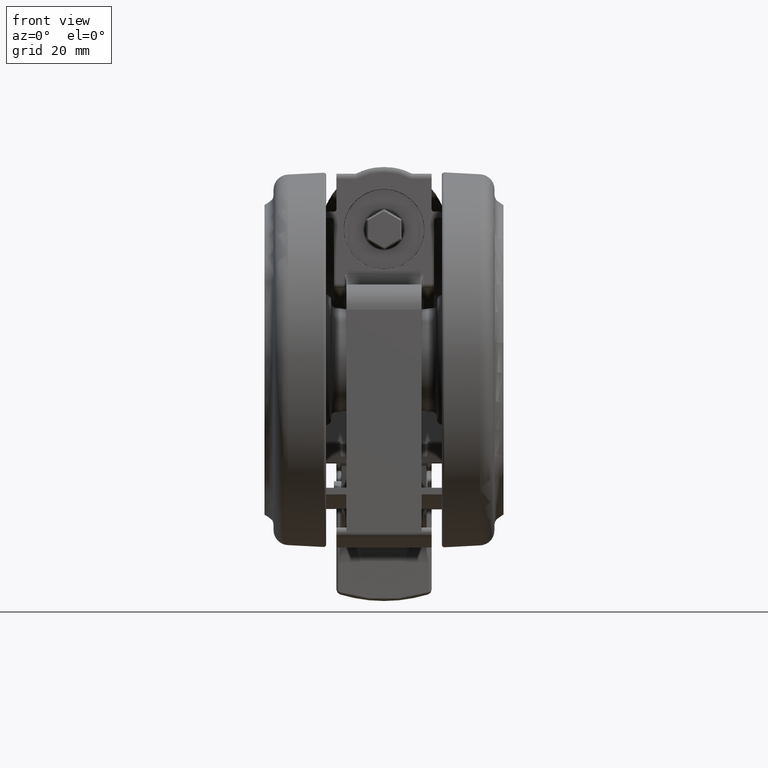
[diagram: clean part render]
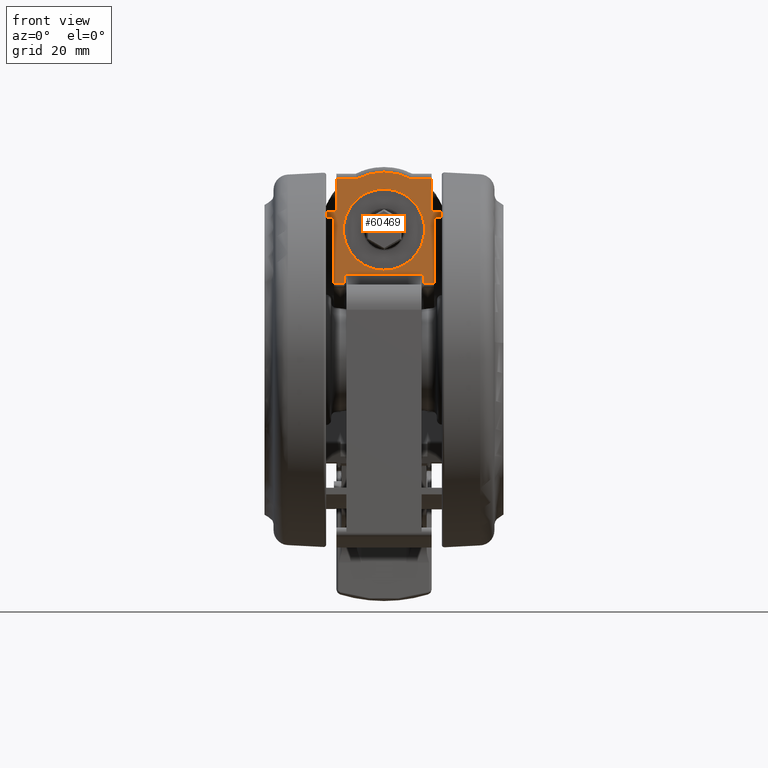
[diagram: same view with one face highlighted and labeled with its STEP entity id]
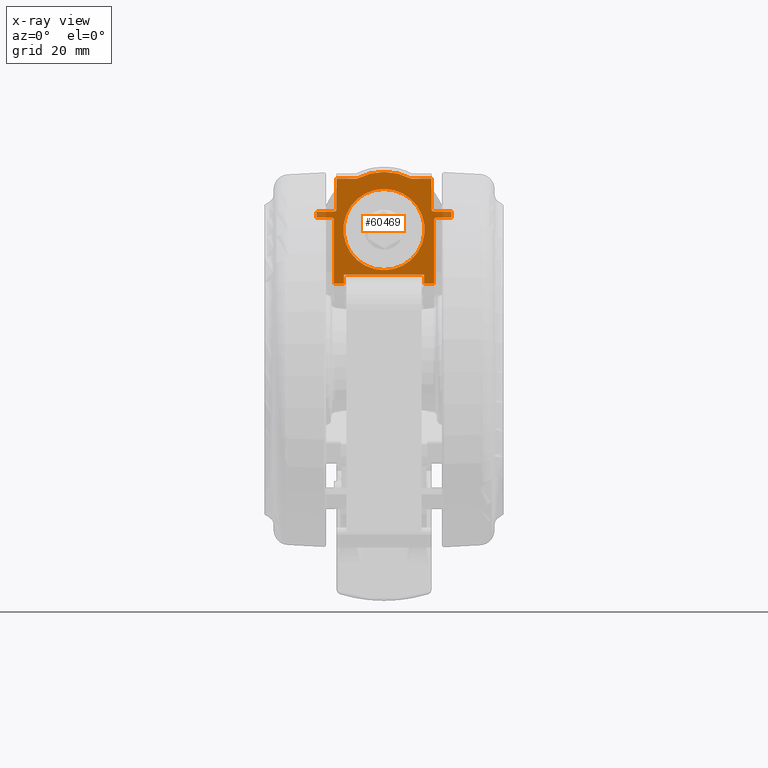
[diagram: x-ray of the same camera — body ghosted, the highlighted face saturated]
A machine part, front view. The second image highlights one B-rep face of the part: STEP entity #60469.
The next image is the same camera in x-ray: the body ghosted, the highlighted face saturated — about 2% of this face is hidden behind the body in this view.
In plain terms, the highlighted planar face has unit normal (0, -1, 0).
Its self-contained STEP definition (entity closure, byte-faithful):
#280 = DIRECTION ( 'NONE',  ( -0.1091445485807130400, 0.9940258887549723300, 0.0000000000000000000 ) ) ;
#449 = DIRECTION ( 'NONE',  ( 0.1091445485807130100, -0.9940258887549721100, 0.0000000000000000000 ) ) ;
#570 = ORIENTED_EDGE ( 'NONE', *, *, #36210, .T. ) ;
#622 = LINE ( 'NONE', #55205, #4194 ) ;
#747 = CARTESIAN_POINT ( 'NONE',  ( -2.317250034057589200, -15.54446371798203300, -33.84999999999990900 ) ) ;
#908 = CARTESIAN_POINT ( 'NONE',  ( -0.8797388840196467300, -28.63648999957823100, -34.34999999997899100 ) ) ;
#1197 = CARTESIAN_POINT ( 'NONE',  ( -0.7499411336743749800, -29.81861339303330300, -10.44500463404722400 ) ) ;
#1531 = LINE ( 'NONE', #62427, #73681 ) ;
#1791 = B_SPLINE_CURVE_WITH_KNOTS ( 'NONE', 3,
 ( #11740, #40200, #5816, #51672, #17419, #57368 ),
 .UNSPECIFIED., .F., .F.,
 ( 4, 2, 4 ),
 ( 0.0000000000000000000, 0.0003925160640618587200, 0.0007850321281237174300 ),
 .UNSPECIFIED. ) ;
#1936 = CARTESIAN_POINT ( 'NONE',  ( -0.8797388840196468400, -28.63648999957822400, -10.49691585668118600 ) ) ;
#1958 = CARTESIAN_POINT ( 'NONE',  ( -0.7475227590264601500, -29.84063856094133300, -37.15000000001510500 ) ) ;
#2286 = ORIENTED_EDGE ( 'NONE', *, *, #62149, .F. ) ;
#2609 = CARTESIAN_POINT ( 'NONE',  ( -0.7695516967635204200, -29.64001164281160100, -37.34999999999990200 ) ) ;
#3920 = VECTOR ( 'NONE', #48381, 1000.000000000000100 ) ;
#3929 = CARTESIAN_POINT ( 'NONE',  ( -0.6924621032087025000, -30.34209940389130400, -14.34999999999990500 ) ) ;
#4104 = ORIENTED_EDGE ( 'NONE', *, *, #11115, .T. ) ;
#4156 = EDGE_CURVE ( 'NONE', #68184, #42937, #29688, .T. ) ;
#4194 = VECTOR ( 'NONE', #20957, 1000.000000000000100 ) ;
#5072 = PLANE ( 'NONE',  #66597 ) ;
#5648 = AXIS2_PLACEMENT_3D ( 'NONE', #11135, #51059, #16813 ) ;
#5816 = CARTESIAN_POINT ( 'NONE',  ( -0.9061936100843439600, -28.39555554219868600, -13.79656109499671900 ) ) ;
#5817 = ORIENTED_EDGE ( 'NONE', *, *, #22575, .T. ) ;
#5931 = DIRECTION ( 'NONE',  ( 0.0000000000000000000, 0.0000000000000000000, 1.000000000000000000 ) ) ;
#5959 = VERTEX_POINT ( 'NONE', #21475 ) ;
#6161 = ORIENTED_EDGE ( 'NONE', *, *, #16630, .T. ) ;
#6313 = DIRECTION ( 'NONE',  ( -0.0000000000000000000, 0.0000000000000000000, 1.000000000000000000 ) ) ;
#6364 = B_SPLINE_CURVE_WITH_KNOTS ( 'NONE', 3,
 ( #1958, #36038, #7661, #47536, #13334, #53273 ),
 .UNSPECIFIED., .F., .F.,
 ( 4, 2, 4 ),
 ( 0.0000000000000000000, 0.0001569330247998024500, 0.0003138660495996049100 ),
 .UNSPECIFIED. ) ;
#6622 = CARTESIAN_POINT ( 'NONE',  ( -0.9203780501939548000, -28.26637180494568800, -33.84999999998024800 ) ) ;
#6644 = FACE_BOUND ( 'NONE', #58990, .T. ) ;
#6829 = LINE ( 'NONE', #19219, #63811 ) ;
#6903 = CARTESIAN_POINT ( 'NONE',  ( -0.7475227590264601500, -29.84063856094133300, -10.54999999998470600 ) ) ;
#6944 = CARTESIAN_POINT ( 'NONE',  ( -0.8797388840196467300, -28.63648999957823100, -500023.8499999999800 ) ) ;
#7458 = EDGE_CURVE ( 'NONE', #56488, #61046, #8826, .T. ) ;
#7661 = CARTESIAN_POINT ( 'NONE',  ( -0.7499358986295142600, -29.81866107081647100, -37.25489541676648000 ) ) ;
#7889 = B_SPLINE_CURVE_WITH_KNOTS ( 'NONE', 3,
 ( #33854, #28065, #11205, #51131, #16884, #56822 ),
 .UNSPECIFIED., .F., .F.,
 ( 4, 2, 4 ),
 ( 0.0000000000000000000, 0.0001569839258978345300, 0.0003139678517956690600 ),
 .UNSPECIFIED. ) ;
#8151 = CARTESIAN_POINT ( 'NONE',  ( -0.02988281982661995800, -36.37649113118360600, -33.34999999999990900 ) ) ;
#8202 = CARTESIAN_POINT ( 'NONE',  ( -3.976103555019894700, -0.4365781943228521100, -33.84999999999990900 ) ) ;
#8491 = CARTESIAN_POINT ( 'NONE',  ( -3.976103555019894700, -0.4365781943228521100, -13.84999999999990500 ) ) ;
#8826 = CIRCLE ( 'NONE', #14606, 8.100000000000001400 ) ;
#9152 = EDGE_CURVE ( 'NONE', #39172, #19745, #1791, .T. ) ;
#9386 = CARTESIAN_POINT ( 'NONE',  ( -0.02988281982661995800, -36.37649113118360600, -18.47646005874848600 ) ) ;
#9921 = EDGE_CURVE ( 'NONE', #45532, #56229, #54877, .T. ) ;
#10203 = VECTOR ( 'NONE', #5931, 1000.000000000000000 ) ;
#10683 = VERTEX_POINT ( 'NONE', #13268 ) ;
#10761 = DIRECTION ( 'NONE',  ( -0.1091445485807130100, 0.9940258887549721100, 0.0000000000000000000 ) ) ;
#11115 = EDGE_CURVE ( 'NONE', #33305, #52632, #35784, .T. ) ;
#11135 = CARTESIAN_POINT ( 'NONE',  ( -1.138345291921355900, -26.28125130195212800, -23.84999999999990500 ) ) ;
#11205 = CARTESIAN_POINT ( 'NONE',  ( -0.8691603829267878800, -28.73283291443072300, -37.32861079241305200 ) ) ;
#11349 = LINE ( 'NONE', #18230, #53295 ) ;
#11740 = CARTESIAN_POINT ( 'NONE',  ( -0.9348606753327649600, -28.13447236963431300, -13.84999999999990500 ) ) ;
#11838 = EDGE_CURVE ( 'NONE', #22046, #68184, #51010, .T. ) ;
#11891 = CARTESIAN_POINT ( 'NONE',  ( -0.2542744484175804000, -34.33286100086740300, -23.84999999999990500 ) ) ;
#11982 = CARTESIAN_POINT ( 'NONE',  ( -2.317250034057589200, -15.54446371798203300, -23.84999999999990500 ) ) ;
#12163 = ORIENTED_EDGE ( 'NONE', *, *, #9152, .T. ) ;
#12408 = CARTESIAN_POINT ( 'NONE',  ( -2.120646229147773000, -17.33501830315738300, -15.84999999999990500 ) ) ;
#12628 = DIRECTION ( 'NONE',  ( 0.0000000000000000000, 0.0000000000000000000, 1.000000000000000000 ) ) ;
#13268 = CARTESIAN_POINT ( 'NONE',  ( -0.8797388840196467300, -28.63648999957823100, -10.54999999998470600 ) ) ;
#13279 = EDGE_CURVE ( 'NONE', #52632, #15676, #73040, .T. ) ;
#13309 = CARTESIAN_POINT ( 'NONE',  ( -0.8773218816118914000, -28.65850266991068900, -10.44507675061093500 ) ) ;
#13334 = CARTESIAN_POINT ( 'NONE',  ( -0.7637611967200461600, -29.69274819289036300, -37.35000000001554100 ) ) ;
#13763 = ORIENTED_EDGE ( 'NONE', *, *, #58813, .T. ) ;
#14187 = CARTESIAN_POINT ( 'NONE',  ( -0.7475227590264601500, -29.84063856094134000, -13.98265121509559000 ) ) ;
#14606 = AXIS2_PLACEMENT_3D ( 'NONE', #27941, #67878, #33727 ) ;
#14973 = CARTESIAN_POINT ( 'NONE',  ( -0.9348606753327649600, -28.13447236963431300, -13.84999999999990500 ) ) ;
#15071 = ORIENTED_EDGE ( 'NONE', *, *, #63628, .T. ) ;
#15131 = EDGE_CURVE ( 'NONE', #15802, #56320, #1531, .T. ) ;
#15170 = ORIENTED_EDGE ( 'NONE', *, *, #20865, .T. ) ;
#15359 = DIRECTION ( 'NONE',  ( 0.0000000000000000000, 0.0000000000000000000, 1.000000000000000000 ) ) ;
#15676 = VERTEX_POINT ( 'NONE', #62839 ) ;
#15802 = VERTEX_POINT ( 'NONE', #2609 ) ;
#16388 = CARTESIAN_POINT ( 'NONE',  ( -0.7069388915144606500, -30.21025312710445100, -33.34999999999990900 ) ) ;
#16595 = CARTESIAN_POINT ( 'NONE',  ( -0.8797388840196467300, -28.63648999957823100, -34.34999999997899100 ) ) ;
#16630 = EDGE_CURVE ( 'NONE', #15676, #48558, #55700, .T. ) ;
#16813 = DIRECTION ( 'NONE',  ( -0.1091445485807129900, 0.9940258887549720000, 0.0000000000000000000 ) ) ;
#16884 = CARTESIAN_POINT ( 'NONE',  ( -0.8797388840197092300, -28.63648999957765900, -37.20309339131838300 ) ) ;
#17419 = CARTESIAN_POINT ( 'NONE',  ( -0.8797388840196468400, -28.63648999957823400, -13.48275286714708100 ) ) ;
#18230 = CARTESIAN_POINT ( 'NONE',  ( -0.7475227590264601500, -29.84063856094133300, 499976.1500000000200 ) ) ;
#18372 = VECTOR ( 'NONE', #34897, 1000.000000000000000 ) ;
#18385 = LINE ( 'NONE', #72125, #58519 ) ;
#18990 = LINE ( 'NONE', #8491, #3920 ) ;
#19030 = CARTESIAN_POINT ( 'NONE',  ( -0.8634878508237166000, -28.78449508023350500, -10.34999999998421000 ) ) ;
#19219 = CARTESIAN_POINT ( 'NONE',  ( -3.976103555019894700, -0.4365781943228521100, -14.34999999999990500 ) ) ;
#19702 = VERTEX_POINT ( 'NONE', #61316 ) ;
#19745 = VERTEX_POINT ( 'NONE', #67529 ) ;
#20102 = CARTESIAN_POINT ( 'NONE',  ( -0.7211524360981862400, -30.08080432301004200, -14.29620917923133300 ) ) ;
#20544 = VECTOR ( 'NONE', #66414, 1000.000000000000000 ) ;
#20731 = DIRECTION ( 'NONE',  ( -0.1091445485807130100, 0.9940258887549721100, 0.0000000000000000000 ) ) ;
#20865 = EDGE_CURVE ( 'NONE', #23448, #35252, #70515, .T. ) ;
#20878 = DIRECTION ( 'NONE',  ( -0.0000000000000000000, -0.0000000000000000000, -1.000000000000000000 ) ) ;
#20957 = DIRECTION ( 'NONE',  ( -0.1091445485807130100, 0.9940258887549721100, -0.0000000000000000000 ) ) ;
#21108 = ORIENTED_EDGE ( 'NONE', *, *, #4156, .T. ) ;
#21300 = DIRECTION ( 'NONE',  ( -0.0000000000000000000, 0.0000000000000000000, 1.000000000000000000 ) ) ;
#21475 = CARTESIAN_POINT ( 'NONE',  ( -2.317250034057589200, -15.54446371798203300, -15.84999999999990500 ) ) ;
#22046 = VERTEX_POINT ( 'NONE', #36317 ) ;
#22575 = EDGE_CURVE ( 'NONE', #50613, #22046, #6829, .T. ) ;
#23448 = VERTEX_POINT ( 'NONE', #16595 ) ;
#23745 = CARTESIAN_POINT ( 'NONE',  ( -0.7695516967635204200, -29.64001164281160100, -10.34999999999990500 ) ) ;
#24940 = DIRECTION ( 'NONE',  ( 0.1091445485807130100, -0.9940258887549721100, 0.0000000000000000000 ) ) ;
#25463 = ORIENTED_EDGE ( 'NONE', *, *, #44858, .T. ) ;
#25863 = CARTESIAN_POINT ( 'NONE',  ( -0.6924621032087025000, -30.34209940389130400, -14.34999999999990500 ) ) ;
#27559 = CARTESIAN_POINT ( 'NONE',  ( -0.6924621032087025000, -30.34209940389130400, -33.34999999999990900 ) ) ;
#27629 = CARTESIAN_POINT ( 'NONE',  ( -1.138345291921355900, -26.28125130195212800, -23.84999999999990500 ) ) ;
#27805 = CARTESIAN_POINT ( 'NONE',  ( -0.7211100110786254900, -30.08119070573207000, -33.40353851437991800 ) ) ;
#27941 = CARTESIAN_POINT ( 'NONE',  ( -1.138345291921355900, -26.28125130195212800, -23.84999999999990500 ) ) ;
#28065 = CARTESIAN_POINT ( 'NONE',  ( -0.8634888181087978500, -28.78448627075629000, -37.34999999999988800 ) ) ;
#28121 = LINE ( 'NONE', #55126, #58505 ) ;
#29688 = CIRCLE ( 'NONE', #50266, 11.50000000000000000 ) ;
#30516 = CARTESIAN_POINT ( 'NONE',  ( -2.317250034057589200, -15.54446371798203300, -13.84999999999990500 ) ) ;
#32133 = ORIENTED_EDGE ( 'NONE', *, *, #55892, .F. ) ;
#33305 = VERTEX_POINT ( 'NONE', #747 ) ;
#33378 = ORIENTED_EDGE ( 'NONE', *, *, #40766, .T. ) ;
#33533 = LINE ( 'NONE', #68771, #18372 ) ;
#33542 = CARTESIAN_POINT ( 'NONE',  ( -0.7475227590264601500, -29.84063856094133300, -13.85000000000899700 ) ) ;
#33586 = CARTESIAN_POINT ( 'NONE',  ( -0.7475227590264601500, -29.84063856094132900, -33.71732776309662000 ) ) ;
#33604 = EDGE_CURVE ( 'NONE', #42937, #73361, #28121, .T. ) ;
#33724 = DIRECTION ( 'NONE',  ( -0.1091445485807130100, 0.9940258887549721100, 0.0000000000000000000 ) ) ;
#33727 = DIRECTION ( 'NONE',  ( -0.1091445485807129900, 0.9940258887549720000, 0.0000000000000000000 ) ) ;
#33854 = CARTESIAN_POINT ( 'NONE',  ( -0.8576955798834359200, -28.83724775862369700, -37.34999999999990200 ) ) ;
#34355 = DIRECTION ( 'NONE',  ( 0.9940258887549722200, 0.1091445485807130300, 0.0000000000000000000 ) ) ;
#34383 = EDGE_CURVE ( 'NONE', #73361, #19702, #18385, .T. ) ;
#34709 = VERTEX_POINT ( 'NONE', #69323 ) ;
#34710 = CARTESIAN_POINT ( 'NONE',  ( -0.7695516967635204200, -29.64001164281160100, -10.34999999999990500 ) ) ;
#34897 = DIRECTION ( 'NONE',  ( 0.0000000000000000000, -0.0000000000000000000, -1.000000000000000000 ) ) ;
#35252 = VERTEX_POINT ( 'NONE', #59012 ) ;
#35278 = CARTESIAN_POINT ( 'NONE',  ( -0.7580907863250059300, -29.74439103539446800, -10.37140367543216100 ) ) ;
#35452 = DIRECTION ( 'NONE',  ( 0.0000000000000000000, -0.0000000000000000000, -1.000000000000000000 ) ) ;
#35784 = LINE ( 'NONE', #11982, #60704 ) ;
#36038 = CARTESIAN_POINT ( 'NONE',  ( -0.7475227590264601500, -29.84063856094133300, -37.20306697652921500 ) ) ;
#36210 = EDGE_CURVE ( 'NONE', #45532, #34709, #73744, .T. ) ;
#36317 = CARTESIAN_POINT ( 'NONE',  ( -0.02988281982661995800, -36.37649113118360600, -14.34999999999990500 ) ) ;
#36589 = DIRECTION ( 'NONE',  ( -0.1091445485807130100, 0.9940258887549721100, 0.0000000000000000000 ) ) ;
#36656 = ORIENTED_EDGE ( 'NONE', *, *, #11838, .T. ) ;
#38101 = CARTESIAN_POINT ( 'NONE',  ( -2.317250034057589200, -15.54446371798203300, -31.84999999999990500 ) ) ;
#39172 = VERTEX_POINT ( 'NONE', #14973 ) ;
#39727 = VECTOR ( 'NONE', #33724, 1000.000000000000100 ) ;
#39819 = ORIENTED_EDGE ( 'NONE', *, *, #57933, .T. ) ;
#39867 = LINE ( 'NONE', #49840, #51470 ) ;
#40200 = CARTESIAN_POINT ( 'NONE',  ( -0.9203756064838988200, -28.26639406085395100, -13.84999999999990400 ) ) ;
#40518 = CARTESIAN_POINT ( 'NONE',  ( -0.8857833122117388900, -28.58144081770162600, -34.08765366695188700 ) ) ;
#40744 = CARTESIAN_POINT ( 'NONE',  ( -0.9061500125040243800, -28.39595260393092600, -33.90370064642542000 ) ) ;
#40766 = EDGE_CURVE ( 'NONE', #19702, #41881, #47651, .T. ) ;
#41035 = CARTESIAN_POINT ( 'NONE',  ( -0.7475227590263983100, -29.84063856094190500, -10.49692441354207900 ) ) ;
#41530 = CARTESIAN_POINT ( 'NONE',  ( -0.02988281982665725500, -36.37649113118325800, -18.45486851520146500 ) ) ;
#41782 = CARTESIAN_POINT ( 'NONE',  ( -0.8797388840196467300, -28.63648999957823100, -10.54999999998470600 ) ) ;
#41881 = VERTEX_POINT ( 'NONE', #51421 ) ;
#42521 = LINE ( 'NONE', #8202, #70987 ) ;
#42772 = VECTOR ( 'NONE', #449, 1000.000000000000100 ) ;
#42937 = VERTEX_POINT ( 'NONE', #71429 ) ;
#44085 = ORIENTED_EDGE ( 'NONE', *, *, #59217, .T. ) ;
#44488 = B_SPLINE_CURVE_WITH_KNOTS ( 'NONE', 3,
 ( #41782, #1936, #13309, #53256, #19030, #58918 ),
 .UNSPECIFIED., .F., .F.,
 ( 4, 2, 4 ),
 ( 0.0000000000000000000, 0.0001569829722061791200, 0.0003139659444123582500 ),
 .UNSPECIFIED. ) ;
#44858 = EDGE_CURVE ( 'NONE', #5959, #46543, #39867, .T. ) ;
#44934 = DIRECTION ( 'NONE',  ( 0.9940258887549722200, 0.1091445485807130300, 0.0000000000000000000 ) ) ;
#45532 = VERTEX_POINT ( 'NONE', #34710 ) ;
#46519 = CARTESIAN_POINT ( 'NONE',  ( -0.9348606753327649600, -28.13447236963431300, -33.84999999999990900 ) ) ;
#46543 = VERTEX_POINT ( 'NONE', #30516 ) ;
#47536 = CARTESIAN_POINT ( 'NONE',  ( -0.7580736918692524400, -29.74454672188356200, -37.32849446779824400 ) ) ;
#47611 = ORIENTED_EDGE ( 'NONE', *, *, #58575, .T. ) ;
#47651 = B_SPLINE_CURVE_WITH_KNOTS ( 'NONE', 3,
 ( #27559, #16388, #27805, #67731, #33586, #73476 ),
 .UNSPECIFIED., .F., .F.,
 ( 4, 2, 4 ),
 ( 0.0000000000000000000, 0.0003922863529919725000, 0.0007845727059839450100 ),
 .UNSPECIFIED. ) ;
#47681 = ORIENTED_EDGE ( 'NONE', *, *, #9921, .F. ) ;
#48238 = EDGE_CURVE ( 'NONE', #39172, #46543, #18990, .T. ) ;
#48381 = DIRECTION ( 'NONE',  ( -0.1091445485807130100, 0.9940258887549721100, 0.0000000000000000000 ) ) ;
#48558 = VERTEX_POINT ( 'NONE', #12408 ) ;
#49455 = CARTESIAN_POINT ( 'NONE',  ( -0.8797388840196467300, -28.63648999957823100, -37.15000000001510500 ) ) ;
#49840 = CARTESIAN_POINT ( 'NONE',  ( -2.317250034057589200, -15.54446371798203300, -14.34999999999990500 ) ) ;
#49942 = B_SPLINE_CURVE_WITH_KNOTS ( 'NONE', 3,
 ( #59797, #14187, #54357, #20102, #60039, #25863 ),
 .UNSPECIFIED., .F., .F.,
 ( 4, 2, 4 ),
 ( 0.0000000000000000000, 0.0003922842060889796600, 0.0007845684121779593300 ),
 .UNSPECIFIED. ) ;
#50266 = AXIS2_PLACEMENT_3D ( 'NONE', #68474, #34355, #280 ) ;
#50613 = VERTEX_POINT ( 'NONE', #3929 ) ;
#51010 = LINE ( 'NONE', #9386, #20544 ) ;
#51059 = DIRECTION ( 'NONE',  ( 0.9940258887549722200, 0.1091445485807130300, 0.0000000000000000000 ) ) ;
#51131 = CARTESIAN_POINT ( 'NONE',  ( -0.8773168648711443500, -28.65854835950530300, -37.25502107574581600 ) ) ;
#51318 = CARTESIAN_POINT ( 'NONE',  ( -0.7475227590264601500, -29.84063856094133300, -37.15000000001510500 ) ) ;
#51421 = CARTESIAN_POINT ( 'NONE',  ( -0.7475227590264601500, -29.84063856094133300, -33.84999999999082100 ) ) ;
#51470 = VECTOR ( 'NONE', #21300, 1000.000000000000000 ) ;
#51672 = CARTESIAN_POINT ( 'NONE',  ( -0.8857956741901543700, -28.58132823189921000, -13.61258965920853800 ) ) ;
#51766 = EDGE_LOOP ( 'NONE', ( #59408, #15170, #13763, #4104, #65216, #6161, #39819, #25463, #52813, #12163, #15071, #67436, #47681, #570, #32133, #44085, #5817, #36656, #21108, #70843, #57570, #33378, #72721, #58704, #55830, #47611 ) ) ;
#51926 = CIRCLE ( 'NONE', #5648, 8.100000000000001400 ) ;
#52118 = VERTEX_POINT ( 'NONE', #49455 ) ;
#52632 = VERTEX_POINT ( 'NONE', #38101 ) ;
#52813 = ORIENTED_EDGE ( 'NONE', *, *, #48238, .F. ) ;
#53256 = CARTESIAN_POINT ( 'NONE',  ( -0.8691776761038956200, -28.73267541810160400, -10.37149281034984200 ) ) ;
#53273 = CARTESIAN_POINT ( 'NONE',  ( -0.7695516967635204200, -29.64001164281160100, -37.34999999999990200 ) ) ;
#53295 = VECTOR ( 'NONE', #35452, 1000.000000000000000 ) ;
#53491 = CARTESIAN_POINT ( 'NONE',  ( -0.8576955798834359200, -28.83724775862369700, -10.34999999999990500 ) ) ;
#53879 = EDGE_CURVE ( 'NONE', #23448, #52118, #33533, .T. ) ;
#54357 = CARTESIAN_POINT ( 'NONE',  ( -0.7414915699643415100, -29.89556716842270800, -14.11220555239927100 ) ) ;
#54877 = LINE ( 'NONE', #67874, #39727 ) ;
#55126 = CARTESIAN_POINT ( 'NONE',  ( -0.02988281982661995800, -36.37649113118360600, -33.34999999999990900 ) ) ;
#55205 = CARTESIAN_POINT ( 'NONE',  ( -1.138345291921355900, -26.28125130195212800, -15.84999999999990500 ) ) ;
#55700 = LINE ( 'NONE', #57000, #10203 ) ;
#55830 = ORIENTED_EDGE ( 'NONE', *, *, #15131, .T. ) ;
#55892 = EDGE_CURVE ( 'NONE', #69449, #34709, #71245, .T. ) ;
#56146 = VECTOR ( 'NONE', #15359, 1000.000000000000000 ) ;
#56229 = VERTEX_POINT ( 'NONE', #53491 ) ;
#56320 = VERTEX_POINT ( 'NONE', #71338 ) ;
#56488 = VERTEX_POINT ( 'NONE', #62600 ) ;
#56822 = CARTESIAN_POINT ( 'NONE',  ( -0.8797388840196467300, -28.63648999957823100, -37.15000000001510500 ) ) ;
#57000 = CARTESIAN_POINT ( 'NONE',  ( -2.120646229147773000, -17.33501830315738300, -23.84999999999990500 ) ) ;
#57368 = CARTESIAN_POINT ( 'NONE',  ( -0.8797388840196467300, -28.63648999957823100, -13.35000000002082600 ) ) ;
#57570 = ORIENTED_EDGE ( 'NONE', *, *, #34383, .T. ) ;
#57933 = EDGE_CURVE ( 'NONE', #48558, #5959, #622, .T. ) ;
#57970 = CARTESIAN_POINT ( 'NONE',  ( -0.7637602999368404700, -29.69275636027695200, -10.34999999999990000 ) ) ;
#58505 = VECTOR ( 'NONE', #20878, 1000.000000000000000 ) ;
#58519 = VECTOR ( 'NONE', #20731, 1000.000000000000100 ) ;
#58575 = EDGE_CURVE ( 'NONE', #56320, #52118, #7889, .T. ) ;
#58704 = ORIENTED_EDGE ( 'NONE', *, *, #73324, .T. ) ;
#58813 = EDGE_CURVE ( 'NONE', #35252, #33305, #42521, .T. ) ;
#58918 = CARTESIAN_POINT ( 'NONE',  ( -0.8576955798834359200, -28.83724775862369700, -10.34999999999990500 ) ) ;
#58990 = EDGE_LOOP ( 'NONE', ( #2286, #67982 ) ) ;
#59012 = CARTESIAN_POINT ( 'NONE',  ( -0.9348606753327649600, -28.13447236963431300, -33.84999999999990900 ) ) ;
#59217 = EDGE_CURVE ( 'NONE', #69449, #50613, #49942, .T. ) ;
#59273 = LINE ( 'NONE', #6944, #72651 ) ;
#59408 = ORIENTED_EDGE ( 'NONE', *, *, #53879, .F. ) ;
#59797 = CARTESIAN_POINT ( 'NONE',  ( -0.7475227590264601500, -29.84063856094133300, -13.85000000000899700 ) ) ;
#60039 = CARTESIAN_POINT ( 'NONE',  ( -0.7069366726468853100, -30.21027333527647600, -14.35000000000845200 ) ) ;
#60469 = ADVANCED_FACE ( 'NONE', ( #67213, #6644 ), #5072, .T. ) ;
#60704 = VECTOR ( 'NONE', #6313, 1000.000000000000000 ) ;
#61046 = VERTEX_POINT ( 'NONE', #11891 ) ;
#61316 = CARTESIAN_POINT ( 'NONE',  ( -0.6924621032087025000, -30.34209940389130400, -33.34999999999990900 ) ) ;
#62149 = EDGE_CURVE ( 'NONE', #61046, #56488, #51926, .T. ) ;
#62324 = EDGE_CURVE ( 'NONE', #10683, #56229, #44488, .T. ) ;
#62427 = CARTESIAN_POINT ( 'NONE',  ( -0.7475227590264601500, -29.84063856094133300, -37.34999999999990200 ) ) ;
#62600 = CARTESIAN_POINT ( 'NONE',  ( -2.022416135425131300, -18.22964160303685300, -23.84999999999990500 ) ) ;
#62839 = CARTESIAN_POINT ( 'NONE',  ( -2.120646229147773000, -17.33501830315738300, -31.84999999999990500 ) ) ;
#63628 = EDGE_CURVE ( 'NONE', #19745, #10683, #59273, .T. ) ;
#63811 = VECTOR ( 'NONE', #24940, 1000.000000000000100 ) ;
#65193 = VERTEX_POINT ( 'NONE', #51318 ) ;
#65216 = ORIENTED_EDGE ( 'NONE', *, *, #13279, .T. ) ;
#66414 = DIRECTION ( 'NONE',  ( -0.0000000000000000000, -0.0000000000000000000, -1.000000000000000000 ) ) ;
#66597 = AXIS2_PLACEMENT_3D ( 'NONE', #27629, #44934, #10761 ) ;
#67213 = FACE_OUTER_BOUND ( 'NONE', #51766, .T. ) ;
#67436 = ORIENTED_EDGE ( 'NONE', *, *, #62324, .T. ) ;
#67529 = CARTESIAN_POINT ( 'NONE',  ( -0.8797388840196467300, -28.63648999957823100, -13.35000000002082600 ) ) ;
#67731 = CARTESIAN_POINT ( 'NONE',  ( -0.7414783294968715400, -29.89568775499908400, -33.58754351971924700 ) ) ;
#67874 = CARTESIAN_POINT ( 'NONE',  ( -0.7475227590264601500, -29.84063856094133300, -10.34999999999990500 ) ) ;
#67878 = DIRECTION ( 'NONE',  ( 0.9940258887549722200, 0.1091445485807130300, 0.0000000000000000000 ) ) ;
#67982 = ORIENTED_EDGE ( 'NONE', *, *, #7458, .F. ) ;
#68147 = DIRECTION ( 'NONE',  ( -0.1091445485807130100, 0.9940258887549721100, 0.0000000000000000000 ) ) ;
#68184 = VERTEX_POINT ( 'NONE', #41530 ) ;
#68474 = CARTESIAN_POINT ( 'NONE',  ( -1.138345291921355900, -26.28125130195212800, -23.84999999999990500 ) ) ;
#68771 = CARTESIAN_POINT ( 'NONE',  ( -0.8797388840196467300, -28.63648999957823100, 499976.1500000000200 ) ) ;
#68903 = CARTESIAN_POINT ( 'NONE',  ( -1.138345291921355900, -26.28125130195212800, -31.84999999999990500 ) ) ;
#69103 = CARTESIAN_POINT ( 'NONE',  ( -0.8797388840196467300, -28.63648999957822700, -34.21727083429262000 ) ) ;
#69323 = CARTESIAN_POINT ( 'NONE',  ( -0.7475227590264601500, -29.84063856094133300, -10.54999999998470600 ) ) ;
#69449 = VERTEX_POINT ( 'NONE', #33542 ) ;
#69919 = EDGE_CURVE ( 'NONE', #41881, #65193, #11349, .T. ) ;
#70515 = B_SPLINE_CURVE_WITH_KNOTS ( 'NONE', 3,
 ( #908, #69103, #40518, #40744, #6622, #46519 ),
 .UNSPECIFIED., .F., .F.,
 ( 4, 2, 4 ),
 ( 0.0000000000000000000, 0.0003925134712291438000, 0.0007850269424582876000 ),
 .UNSPECIFIED. ) ;
#70843 = ORIENTED_EDGE ( 'NONE', *, *, #33604, .T. ) ;
#70987 = VECTOR ( 'NONE', #36589, 1000.000000000000100 ) ;
#71245 = LINE ( 'NONE', #72173, #56146 ) ;
#71338 = CARTESIAN_POINT ( 'NONE',  ( -0.8576955798834359200, -28.83724775862369700, -37.34999999999990200 ) ) ;
#71429 = CARTESIAN_POINT ( 'NONE',  ( -0.02988281982665725500, -36.37649113118325800, -29.24513148479835000 ) ) ;
#72125 = CARTESIAN_POINT ( 'NONE',  ( -3.976103555019894700, -0.4365781943228521100, -33.34999999999990900 ) ) ;
#72173 = CARTESIAN_POINT ( 'NONE',  ( -0.7475227590264601500, -29.84063856094133300, -500023.8499999999800 ) ) ;
#72651 = VECTOR ( 'NONE', #12628, 1000.000000000000000 ) ;
#72721 = ORIENTED_EDGE ( 'NONE', *, *, #69919, .T. ) ;
#73040 = LINE ( 'NONE', #68903, #42772 ) ;
#73324 = EDGE_CURVE ( 'NONE', #65193, #15802, #6364, .T. ) ;
#73361 = VERTEX_POINT ( 'NONE', #8151 ) ;
#73476 = CARTESIAN_POINT ( 'NONE',  ( -0.7475227590264601500, -29.84063856094133300, -33.84999999999082100 ) ) ;
#73681 = VECTOR ( 'NONE', #68147, 1000.000000000000100 ) ;
#73744 = B_SPLINE_CURVE_WITH_KNOTS ( 'NONE', 3,
 ( #23745, #57970, #35278, #1197, #41035, #6903 ),
 .UNSPECIFIED., .F., .F.,
 ( 4, 2, 4 ),
 ( 0.0000000000000000000, 0.0001569339558799965200, 0.0003138679117599930300 ),
 .UNSPECIFIED. ) ;